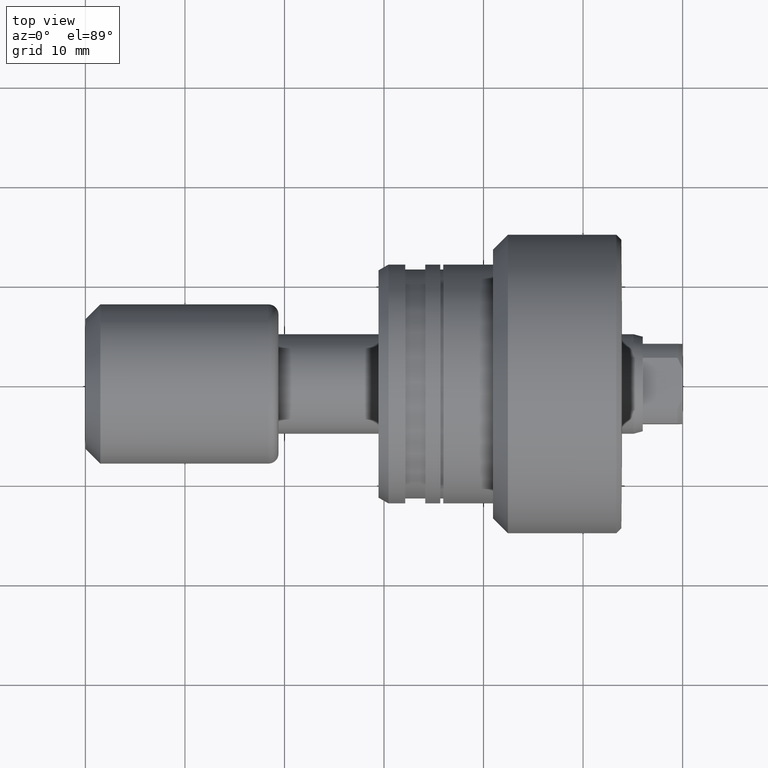
[diagram: clean part render]
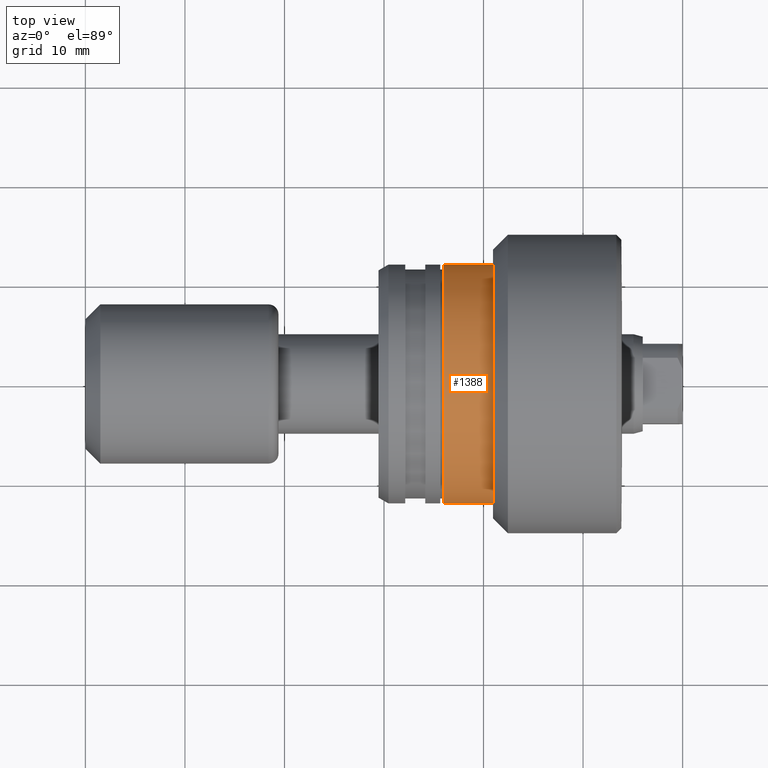
[diagram: same view with one face highlighted and labeled with its STEP entity id]
A machine part, top view. The second image highlights one B-rep face of the part: STEP entity #1388.
In plain terms, the highlighted cylindrical surface (partial cylindrical patch) has radius 12 mm, axis along (-1, 0, 0).
Its self-contained STEP definition (entity closure, byte-faithful):
#89 = DIRECTION ( 'NONE',  ( -5.782411586589360597E-16, -1.000000000000000000, 0.000000000000000000 ) ) ;
#136 = CARTESIAN_POINT ( 'NONE',  ( -30.28002276692733119, -11.99999999999999289, 0.000000000000000000 ) ) ;
#161 = CARTESIAN_POINT ( 'NONE',  ( -30.28002276692732408, 0.000000000000000000, 0.000000000000000000 ) ) ;
#168 = AXIS2_PLACEMENT_3D ( 'NONE', #161, #324, #1686 ) ;
#171 = AXIS2_PLACEMENT_3D ( 'NONE', #1639, #2386, #2238 ) ;
#257 = EDGE_LOOP ( 'NONE', ( #1830, #605, #1712, #2345 ) ) ;
#324 = DIRECTION ( 'NONE',  ( -1.000000000000000000, 6.415603269213350828E-16, -0.000000000000000000 ) ) ;
#398 = VERTEX_POINT ( 'NONE', #689 ) ;
#435 = LINE ( 'NONE', #1779, #1260 ) ;
#605 = ORIENTED_EDGE ( 'NONE', *, *, #772, .T. ) ;
#689 = CARTESIAN_POINT ( 'NONE',  ( -12.99999999999999822, -12.00000000000000355, 0.000000000000000000 ) ) ;
#713 = DIRECTION ( 'NONE',  ( -1.000000000000000000, 6.415603269213350828E-16, -0.000000000000000000 ) ) ;
#772 = EDGE_CURVE ( 'NONE', #991, #2175, #435, .T. ) ;
#802 = DIRECTION ( 'NONE',  ( -1.000000000000000000, 6.415603269213350828E-16, -0.000000000000000000 ) ) ;
#872 = CARTESIAN_POINT ( 'NONE',  ( -18.00000000000000711, -12.00000000000000355, 0.000000000000000000 ) ) ;
#991 = VERTEX_POINT ( 'NONE', #2007 ) ;
#1031 = EDGE_CURVE ( 'NONE', #398, #2104, #1844, .T. ) ;
#1045 = CARTESIAN_POINT ( 'NONE',  ( -12.99999999999999112, -1.108617705555801452E-14, 0.000000000000000000 ) ) ;
#1260 = VECTOR ( 'NONE', #802, 1000.000000000000000 ) ;
#1365 = VECTOR ( 'NONE', #713, 1000.000000000000000 ) ;
#1388 = ADVANCED_FACE ( 'NONE', ( #2398 ), #1466, .T. ) ;
#1445 = CARTESIAN_POINT ( 'NONE',  ( -17.99999999999999289, 11.99999999999998579, 1.469576158976823553E-15 ) ) ;
#1466 = CYLINDRICAL_SURFACE ( 'NONE', #168, 11.99999999999999289 ) ;
#1639 = CARTESIAN_POINT ( 'NONE',  ( -18.00000000000000000, -7.878375420951333982E-15, 0.000000000000000000 ) ) ;
#1686 = DIRECTION ( 'NONE',  ( -5.782411586589360597E-16, -1.000000000000000000, 0.000000000000000000 ) ) ;
#1687 = CIRCLE ( 'NONE', #171, 11.99999999999999467 ) ;
#1712 = ORIENTED_EDGE ( 'NONE', *, *, #1813, .F. ) ;
#1779 = CARTESIAN_POINT ( 'NONE',  ( -30.28002276692731698, 11.99999999999999289, 1.469576158976823158E-15 ) ) ;
#1811 = DIRECTION ( 'NONE',  ( -1.000000000000000000, 6.415603269213350828E-16, -0.000000000000000000 ) ) ;
#1813 = EDGE_CURVE ( 'NONE', #2104, #2175, #1687, .T. ) ;
#1830 = ORIENTED_EDGE ( 'NONE', *, *, #2180, .T. ) ;
#1844 = LINE ( 'NONE', #136, #1365 ) ;
#1934 = CIRCLE ( 'NONE', #2198, 11.99999999999999289 ) ;
#2007 = CARTESIAN_POINT ( 'NONE',  ( -12.99999999999998401, 11.99999999999998224, 1.469576158976823158E-15 ) ) ;
#2104 = VERTEX_POINT ( 'NONE', #872 ) ;
#2175 = VERTEX_POINT ( 'NONE', #1445 ) ;
#2180 = EDGE_CURVE ( 'NONE', #398, #991, #1934, .T. ) ;
#2198 = AXIS2_PLACEMENT_3D ( 'NONE', #1045, #1811, #89 ) ;
#2238 = DIRECTION ( 'NONE',  ( -5.782411586589359611E-16, -1.000000000000000000, 0.000000000000000000 ) ) ;
#2345 = ORIENTED_EDGE ( 'NONE', *, *, #1031, .F. ) ;
#2386 = DIRECTION ( 'NONE',  ( -1.000000000000000000, 6.415603269213350828E-16, -0.000000000000000000 ) ) ;
#2398 = FACE_OUTER_BOUND ( 'NONE', #257, .T. ) ;